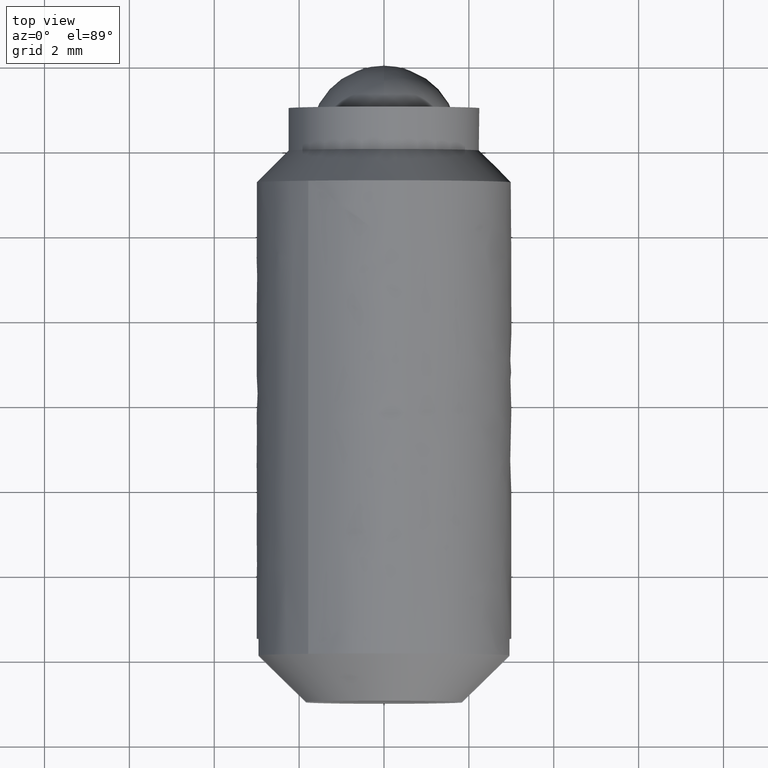
[diagram: clean part render]
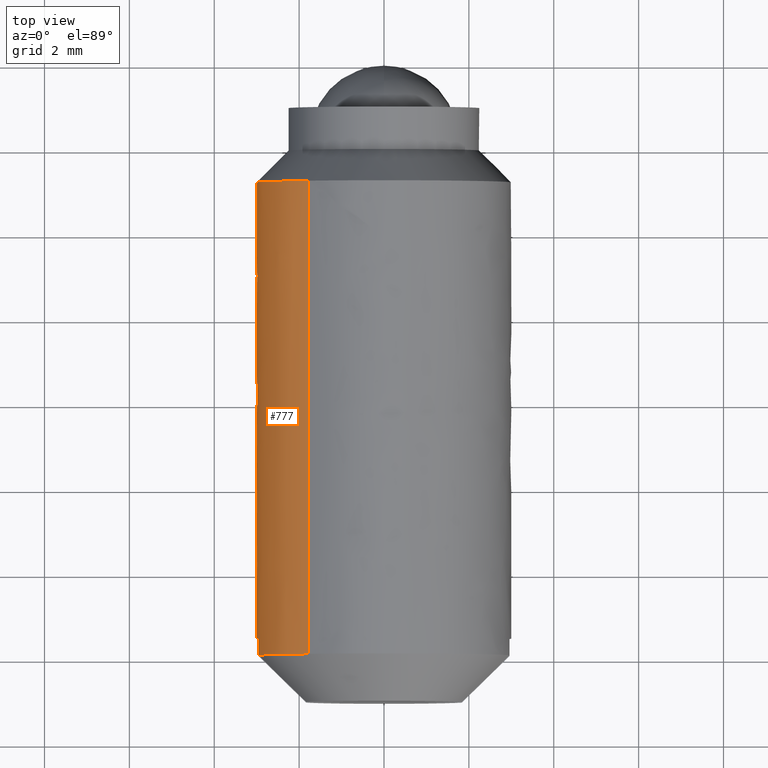
[diagram: same view with one face highlighted and labeled with its STEP entity id]
A machine part, top view. The second image highlights one B-rep face of the part: STEP entity #777.
In plain terms, the highlighted face is a freeform B-spline surface patch.
Its self-contained STEP definition (entity closure, byte-faithful):
#460=CARTESIAN_POINT('',(-2.994404395267101,-2.750000000002790,0.183145618625737));
#461=VERTEX_POINT('',#460);
#467=CARTESIAN_POINT('',(-1.784467472697592,-2.750000000000000,2.411571238608357));
#468=VERTEX_POINT('',#467);
#469=CARTESIAN_POINT('',(-1.784467472697592,-2.750000000000000,2.411571238608356));
#470=CARTESIAN_POINT('',(-2.909002149701276,-2.750000000000000,1.579459990594403));
#471=CARTESIAN_POINT('',(-2.994404395267101,-2.750000000002789,0.183145618625737));
#479=(BOUNDED_CURVE()B_SPLINE_CURVE(2,(#469,#470,#471),.UNSPECIFIED.,.F.,.U.)B_SPLINE_CURVE_WITH_KNOTS((3,3),(0.602574061870398,0.739332962239549),.UNSPECIFIED.)CURVE()GEOMETRIC_REPRESENTATION_ITEM()RATIONAL_B_SPLINE_CURVE((0.858267075351934,0.829521863421190,0.976072041668018))REPRESENTATION_ITEM(''));
#480=EDGE_CURVE('',#468,#461,#479,.T.);
#557=CARTESIAN_POINT('',(-2.509681558042595,-2.749999999999988,-1.643623581365348));
#558=VERTEX_POINT('',#557);
#572=CARTESIAN_POINT('',(-2.994404395267102,-2.750000000002790,0.183145618625737));
#573=CARTESIAN_POINT('',(-3.000000000000000,-2.750000000000000,0.091658289916822));
#574=CARTESIAN_POINT('',(-3.0,-2.750000000000000,-9.796851E-016));
#575=CARTESIAN_POINT('',(-3.0,-2.750000000000000,-0.894946158180894));
#576=CARTESIAN_POINT('',(-2.509681558042595,-2.749999999999987,-1.643623581365348));
#584=(BOUNDED_CURVE()B_SPLINE_CURVE(2,(#572,#573,#574,#575,#576),.UNSPECIFIED.,.F.,.U.)B_SPLINE_CURVE_WITH_KNOTS((3,2,3),(0.739332962239548,0.750000000000000,0.843871112190330),.UNSPECIFIED.)CURVE()GEOMETRIC_REPRESENTATION_ITEM()RATIONAL_B_SPLINE_CURVE((0.976072041668016,0.987502787900547,1.0,0.890023151187902,0.862635495281240))REPRESENTATION_ITEM(''));
#585=EDGE_CURVE('',#461,#558,#584,.T.);
#622=CARTESIAN_POINT('',(-1.784468027591534,-13.900000000000000,2.411570828008873));
#623=VERTEX_POINT('',#622);
#624=CARTESIAN_POINT('',(-1.784467472697592,-2.750000000000000,2.411571238608357));
#625=CARTESIAN_POINT('',(-1.784468027591534,-13.900000000000000,2.411570828008873));
#626=QUASI_UNIFORM_CURVE('',1,(#624,#625),.UNSPECIFIED.,.F.,.U.);
#627=EDGE_CURVE('',#468,#623,#626,.T.);
#675=CARTESIAN_POINT('',(-2.509682359129347,-13.899999941982850,-1.643622406676921));
#676=VERTEX_POINT('',#675);
#692=CARTESIAN_POINT('',(-2.509681558042595,-2.749999999999988,-1.643623581365348));
#693=CARTESIAN_POINT('',(-2.509682359129347,-13.899999941982850,-1.643622406676921));
#694=QUASI_UNIFORM_CURVE('',1,(#692,#693),.UNSPECIFIED.,.F.,.U.);
#695=EDGE_CURVE('',#558,#676,#694,.T.);
#700=CARTESIAN_POINT('',(-1.784468360254024,-2.471250000000000,2.411570581851650));
#701=CARTESIAN_POINT('',(-4.061843334789147,-2.471249999999999,0.726401747451665));
#702=CARTESIAN_POINT('',(-2.509681119573877,-2.471250000000000,-1.643624250871958));
#703=CARTESIAN_POINT('',(-1.784468360254024,-14.185718749999999,2.411570581851650));
#704=CARTESIAN_POINT('',(-4.061843334789147,-14.185718750000001,0.726401747451665));
#705=CARTESIAN_POINT('',(-2.509681119573877,-14.185718750000007,-1.643624250871958));
#713=(BOUNDED_SURFACE()B_SPLINE_SURFACE(2,1,((#700,#703),(#701,#704),(#702,#705)),.UNSPECIFIED.,.F.,.F.,.U.)B_SPLINE_SURFACE_WITH_KNOTS((3,3),(2,2),(0.0,4.770430676126370),(0.0,11.714468750000000),.UNSPECIFIED.)GEOMETRIC_REPRESENTATION_ITEM()RATIONAL_B_SPLINE_SURFACE(((1.0,1.0),(0.718822509939086,0.718822509939086),(0.977505800795127,0.977505800795127)))REPRESENTATION_ITEM('')SURFACE());
#714=ORIENTED_EDGE('',*,*,#480,.T.);
#715=ORIENTED_EDGE('',*,*,#585,.T.);
#716=ORIENTED_EDGE('',*,*,#695,.T.);
#717=CARTESIAN_POINT('',(-2.958040000000000,-13.899999893066660,-0.500000000000000));
#718=VERTEX_POINT('',#717);
#719=CARTESIAN_POINT('',(-2.958040000000000,-13.899999893066660,-0.500000000000000));
#720=CARTESIAN_POINT('',(-2.853460558303233,-13.899999919530529,-1.118700184650195));
#721=CARTESIAN_POINT('',(-2.509682359129347,-13.899999941982850,-1.643622406676921));
#729=(BOUNDED_CURVE()B_SPLINE_CURVE(2,(#719,#720,#721),.UNSPECIFIED.,.F.,.U.)B_SPLINE_CURVE_WITH_KNOTS((3,3),(0.0,0.150493827314272),.UNSPECIFIED.)CURVE()GEOMETRIC_REPRESENTATION_ITEM()RATIONAL_B_SPLINE_CURVE((1.0,0.928895463216588,0.900594101952952))REPRESENTATION_ITEM(''));
#730=EDGE_CURVE('',#718,#676,#729,.T.);
#731=ORIENTED_EDGE('',*,*,#730,.F.);
#732=CARTESIAN_POINT('',(-2.958040000000000,-13.500000000000000,-0.500000000000000));
#733=VERTEX_POINT('',#732);
#734=CARTESIAN_POINT('',(-2.958040000000000,-13.500000000000000,-0.500000000000000));
#735=CARTESIAN_POINT('',(-2.958040000000000,-13.899999893066660,-0.500000000000000));
#736=QUASI_UNIFORM_CURVE('',1,(#734,#735),.UNSPECIFIED.,.F.,.U.);
#737=EDGE_CURVE('',#733,#718,#736,.T.);
#738=ORIENTED_EDGE('',*,*,#737,.F.);
#739=CARTESIAN_POINT('',(-2.958039891549810,-13.500000000000000,0.500000000000000));
#740=VERTEX_POINT('',#739);
#741=CARTESIAN_POINT('',(-2.958039891549808,-13.500000000000000,0.499999999999999));
#742=CARTESIAN_POINT('',(-3.042555315473371,-13.500000000000004,9.165711E-009));
#743=CARTESIAN_POINT('',(-2.958040000000000,-13.500000000000000,-0.500000000000000));
#751=(BOUNDED_CURVE()B_SPLINE_CURVE(2,(#741,#742,#743),.UNSPECIFIED.,.F.,.U.)CURVE()GEOMETRIC_REPRESENTATION_ITEM()QUASI_UNIFORM_CURVE()RATIONAL_B_SPLINE_CURVE((1.0,0.986013297685354,1.0))REPRESENTATION_ITEM(''));
#752=EDGE_CURVE('',#740,#733,#751,.T.);
#753=ORIENTED_EDGE('',*,*,#752,.F.);
#754=CARTESIAN_POINT('',(-2.958039891549810,-13.900000000000000,0.500000000000000));
#755=VERTEX_POINT('',#754);
#756=CARTESIAN_POINT('',(-2.958039891549810,-13.500000000000000,0.500000000000000));
#757=CARTESIAN_POINT('',(-2.958039891549810,-13.900000000000000,0.500000000000000));
#758=QUASI_UNIFORM_CURVE('',1,(#756,#757),.UNSPECIFIED.,.F.,.U.);
#759=EDGE_CURVE('',#740,#755,#758,.T.);
#760=ORIENTED_EDGE('',*,*,#759,.T.);
#761=CARTESIAN_POINT('',(-1.784468027591535,-13.900000000000002,2.411570828008873));
#762=CARTESIAN_POINT('',(-2.756503991046866,-13.900000000000002,1.692302466534229));
#763=CARTESIAN_POINT('',(-2.958039891549808,-13.900000000000000,0.500000000000001));
#771=(BOUNDED_CURVE()B_SPLINE_CURVE(2,(#761,#762,#763),.UNSPECIFIED.,.F.,.U.)B_SPLINE_CURVE_WITH_KNOTS((3,3),(0.727918127711954,1.0),.UNSPECIFIED.)CURVE()GEOMETRIC_REPRESENTATION_ITEM()RATIONAL_B_SPLINE_CURVE((0.882802839386187,0.871448179889920,1.0))REPRESENTATION_ITEM(''));
#772=EDGE_CURVE('',#623,#755,#771,.T.);
#773=ORIENTED_EDGE('',*,*,#772,.F.);
#774=ORIENTED_EDGE('',*,*,#627,.F.);
#775=EDGE_LOOP('',(#714,#715,#716,#731,#738,#753,#760,#773,#774));
#776=FACE_OUTER_BOUND('',#775,.T.);
#777=ADVANCED_FACE('',(#776),#713,.T.);